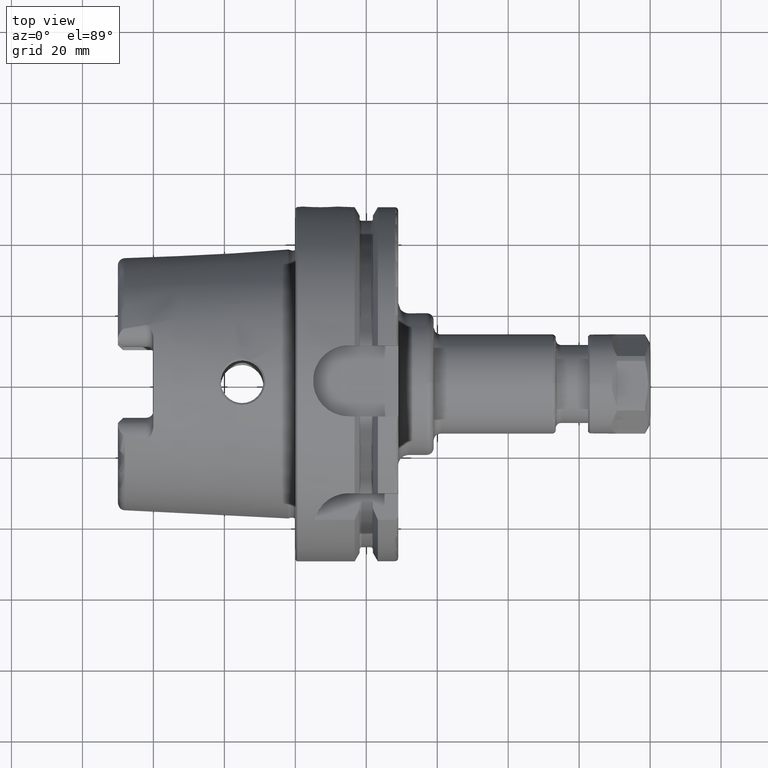
[diagram: clean part render]
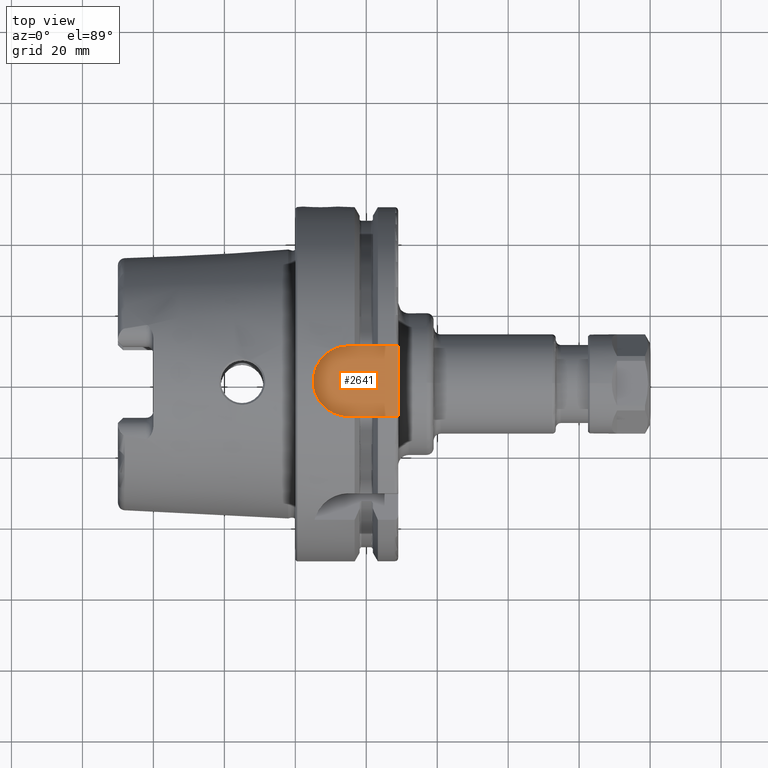
[diagram: same view with one face highlighted and labeled with its STEP entity id]
A machine part, top view. The second image highlights one B-rep face of the part: STEP entity #2641.
In plain terms, the highlighted planar face has unit normal (0, 0, 1).
Its self-contained STEP definition (entity closure, byte-faithful):
#222=PLANE('',#2964);
#356=FACE_OUTER_BOUND('',#518,.T.);
#518=EDGE_LOOP('',(#2149,#2150,#2151,#2152));
#618=LINE('',#4037,#760);
#694=LINE('',#5296,#836);
#697=LINE('',#5303,#839);
#760=VECTOR('',#3225,10.);
#836=VECTOR('',#3553,10.);
#839=VECTOR('',#3562,10.);
#980=CIRCLE('',#2962,10.);
#1088=VERTEX_POINT('',#4034);
#1089=VERTEX_POINT('',#4036);
#1238=VERTEX_POINT('',#5295);
#1239=VERTEX_POINT('',#5299);
#1358=EDGE_CURVE('',#1088,#1089,#618,.T.);
#1567=EDGE_CURVE('',#1238,#1089,#694,.T.);
#1569=EDGE_CURVE('',#1239,#1238,#980,.T.);
#1571=EDGE_CURVE('',#1088,#1239,#697,.T.);
#2149=ORIENTED_EDGE('',*,*,#1571,.T.);
#2150=ORIENTED_EDGE('',*,*,#1569,.T.);
#2151=ORIENTED_EDGE('',*,*,#1567,.T.);
#2152=ORIENTED_EDGE('',*,*,#1358,.F.);
#2641=ADVANCED_FACE('',(#356),#222,.T.);
#2962=AXIS2_PLACEMENT_3D('',#5300,#3557,#3558);
#2964=AXIS2_PLACEMENT_3D('',#5304,#3563,#3564);
#3225=DIRECTION('',(0.,-1.,0.));
#3553=DIRECTION('',(1.,7.93016446160826E-17,0.));
#3557=DIRECTION('center_axis',(0.,0.,1.));
#3558=DIRECTION('ref_axis',(0.,1.,0.));
#3562=DIRECTION('',(-1.,0.,0.));
#3563=DIRECTION('center_axis',(0.,0.,1.));
#3564=DIRECTION('ref_axis',(1.,0.,0.));
#4034=CARTESIAN_POINT('',(29.,10.,44.));
#4036=CARTESIAN_POINT('',(29.,-10.,44.));
#4037=CARTESIAN_POINT('',(29.,0.,44.));
#5295=CARTESIAN_POINT('',(15.,-10.,44.));
#5296=CARTESIAN_POINT('',(15.,-10.,44.));
#5299=CARTESIAN_POINT('',(15.,10.,44.));
#5300=CARTESIAN_POINT('Origin',(15.,0.,44.));
#5303=CARTESIAN_POINT('',(29.,10.,44.));
#5304=CARTESIAN_POINT('Origin',(17.,0.,44.));